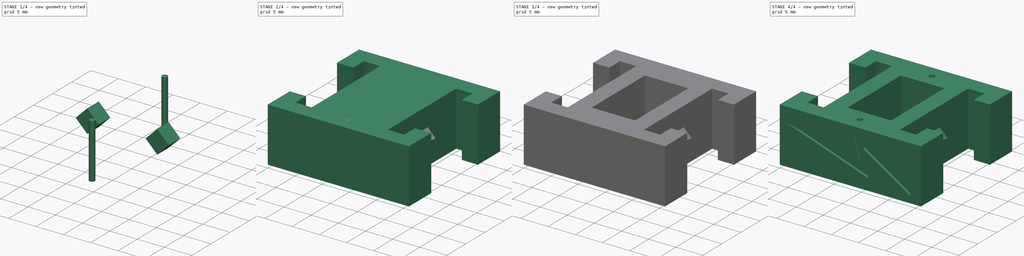
[diagram: build sequence overview — one tinted view per stage of 4, left to right]
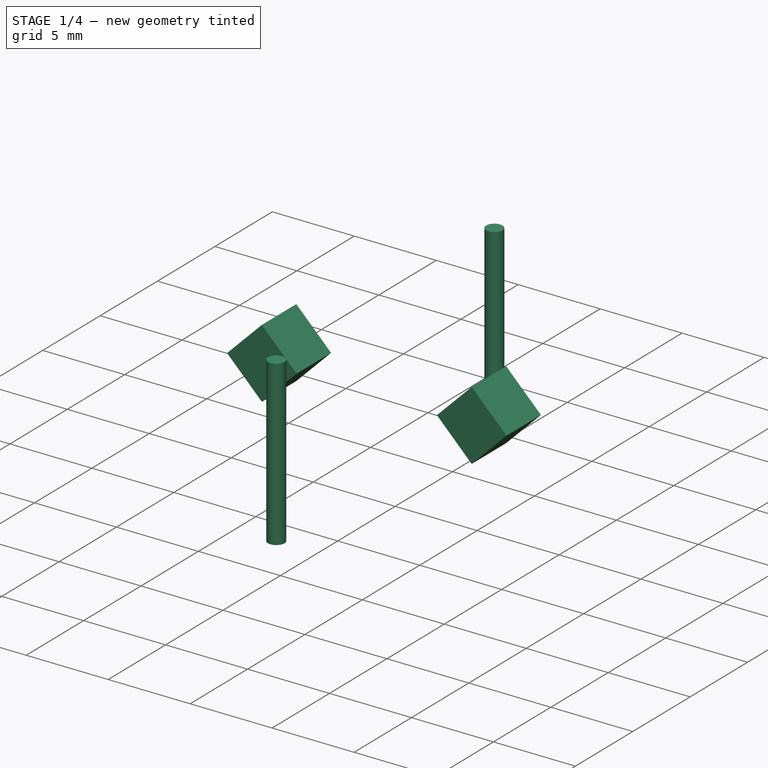
[diagram: stage 1 of 4 — iso view after this stage's code; geometry added in this stage tinted green]
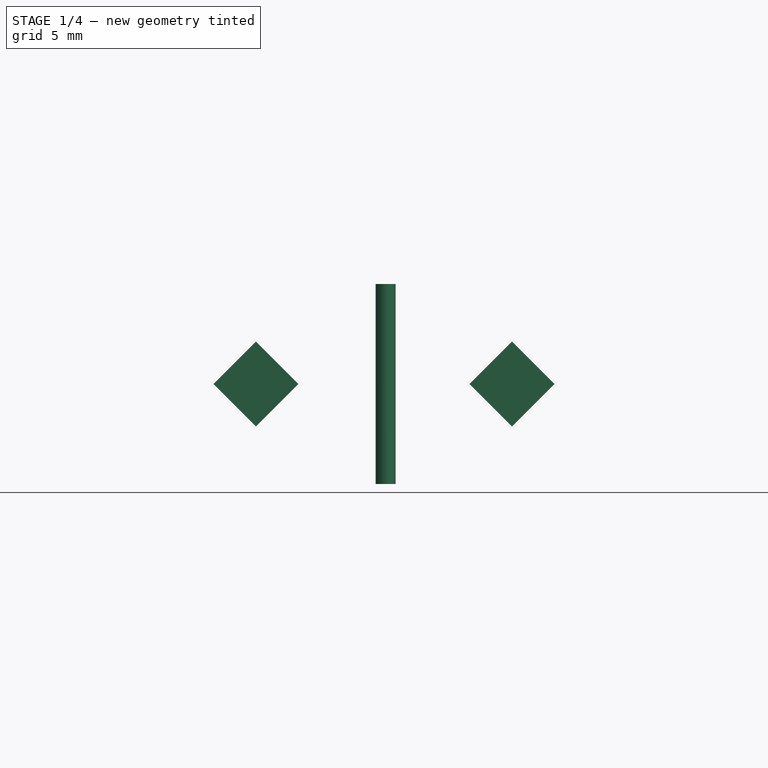
[diagram: stage 1 of 4 — front view after this stage's code; geometry added in this stage tinted green]
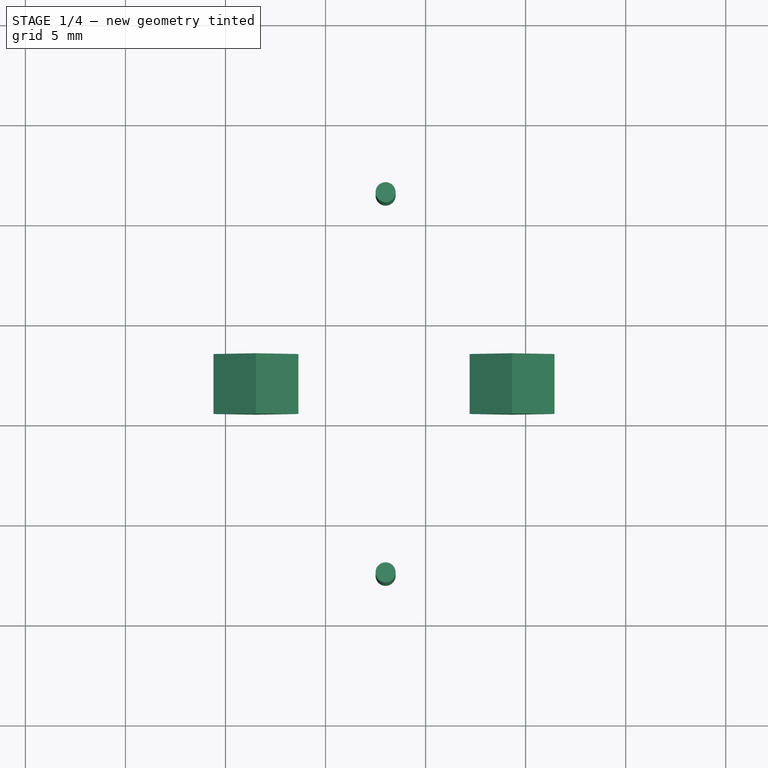
[diagram: stage 1 of 4 — top view after this stage's code; geometry added in this stage tinted green]
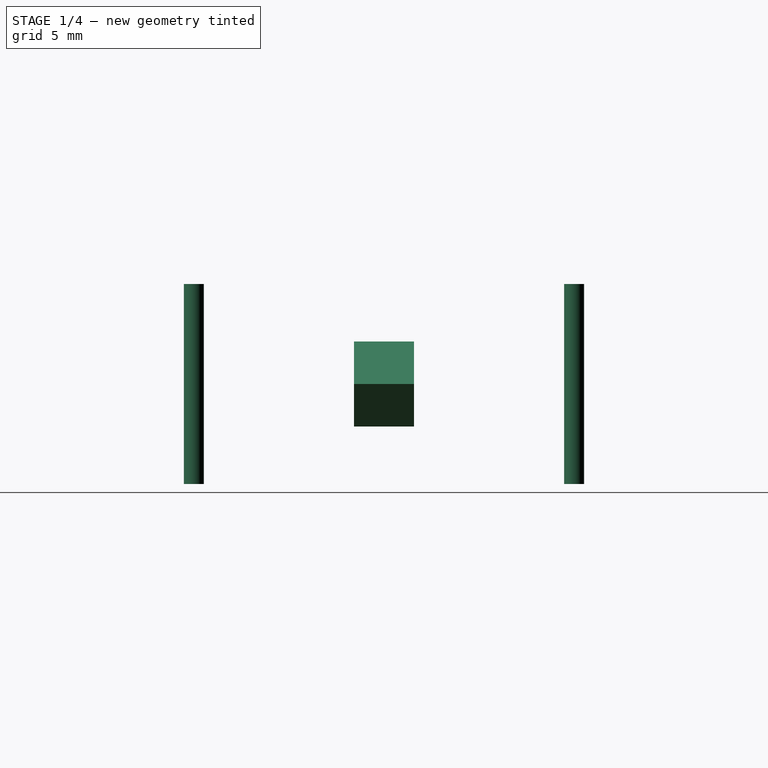
[diagram: stage 1 of 4 — right view after this stage's code; geometry added in this stage tinted green]
FCSTD DOCUMENT  (FreeCAD 0.15R4204 (Git))
Label: nerf_coupler
License: CC-BY 3.0
LicenseURL: http://creativecommons.org/licenses/by/3.0/
objects: Sketcher::SketchObject×3, PartDesign::Pad×3, Part::MultiFuse×3, Part::Box×3, Part::Cut×3, Part::Cylinder×2
note: 20 computed .brp shape members not serialized (recipe doc carries the construction recipe); baked Part::Feature solids carry a one-line shape summary decoded from their .brp

FEATURE [Part::Cylinder] Cylinder
  Angle = 360
  Height = 10
  Placement = pos=(13,2.5,0) rot=(0,0,1;0rad)
  Radius = 0.5
FEATURE [Part::Cylinder] Cylinder001
  Angle = 360
  Height = 10
  Placement = pos=(13,21.5,0) rot=(0,0,1;0rad)
  Radius = 0.5
FEATURE [Part::Box] Box001  label="Cube001"
  Height = 3
  Length = 3
  Placement = pos=(4.4,10.5,5) rot=(0,1,0;0.785398rad)
  Width = 3
FEATURE [Part::Box] Box002  label="Cube002"
  Height = 3
  Length = 3
  Placement = pos=(17.2,10.5,5) rot=(0,1,0;0.785398rad)
  Width = 3
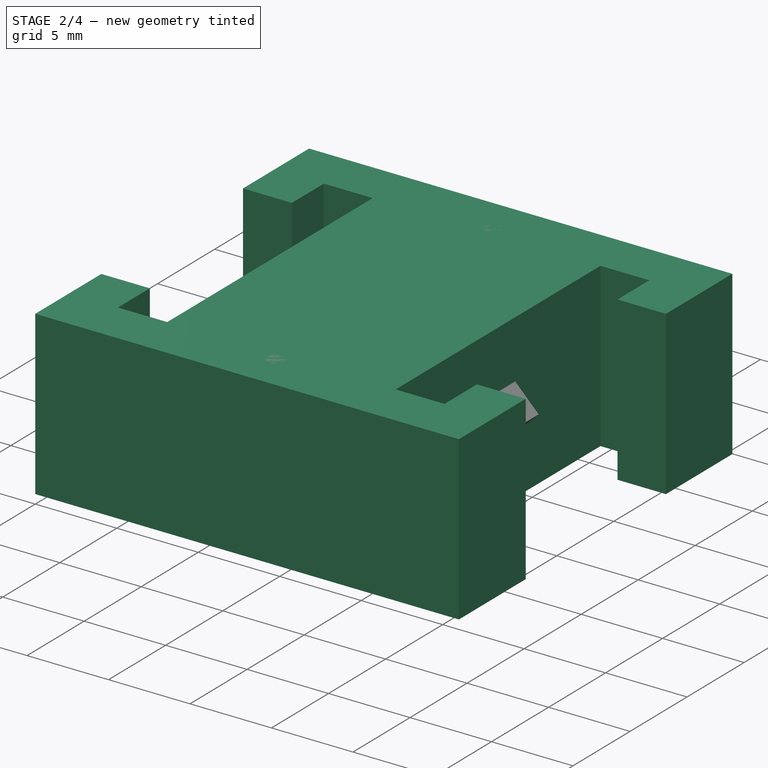
[diagram: stage 2 of 4 — iso view after this stage's code; geometry added in this stage tinted green]
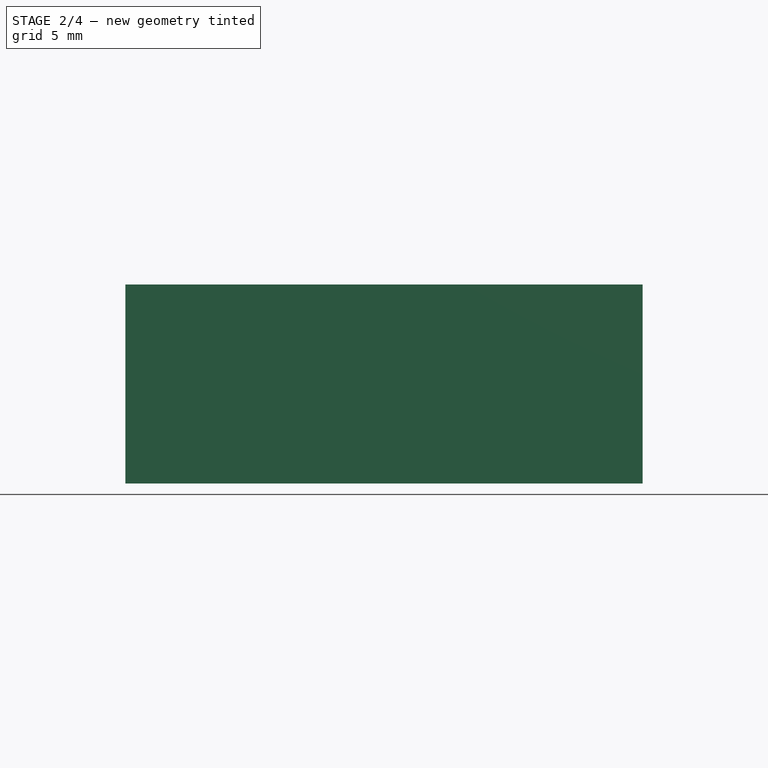
[diagram: stage 2 of 4 — front view after this stage's code; geometry added in this stage tinted green]
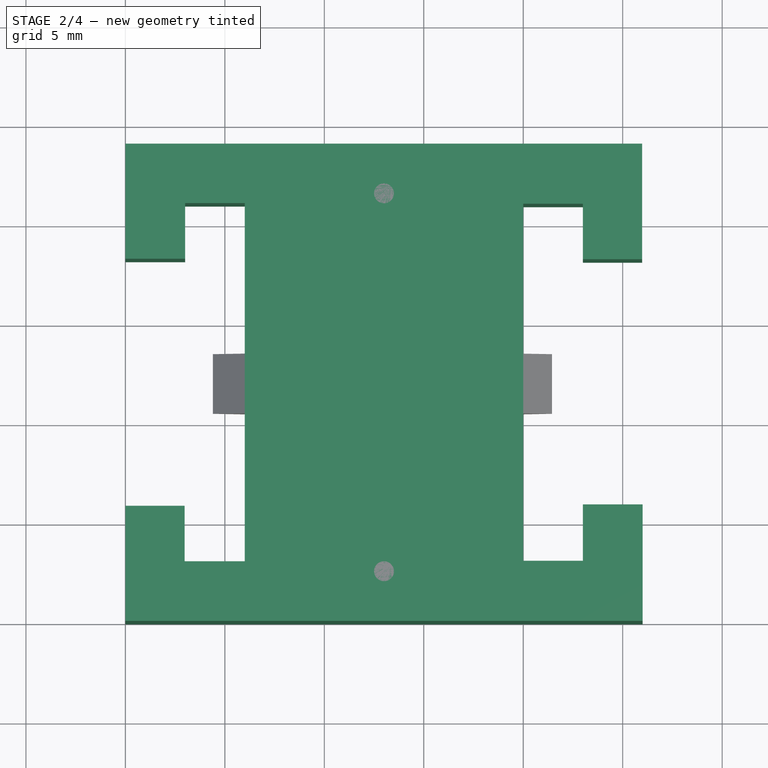
[diagram: stage 2 of 4 — top view after this stage's code; geometry added in this stage tinted green]
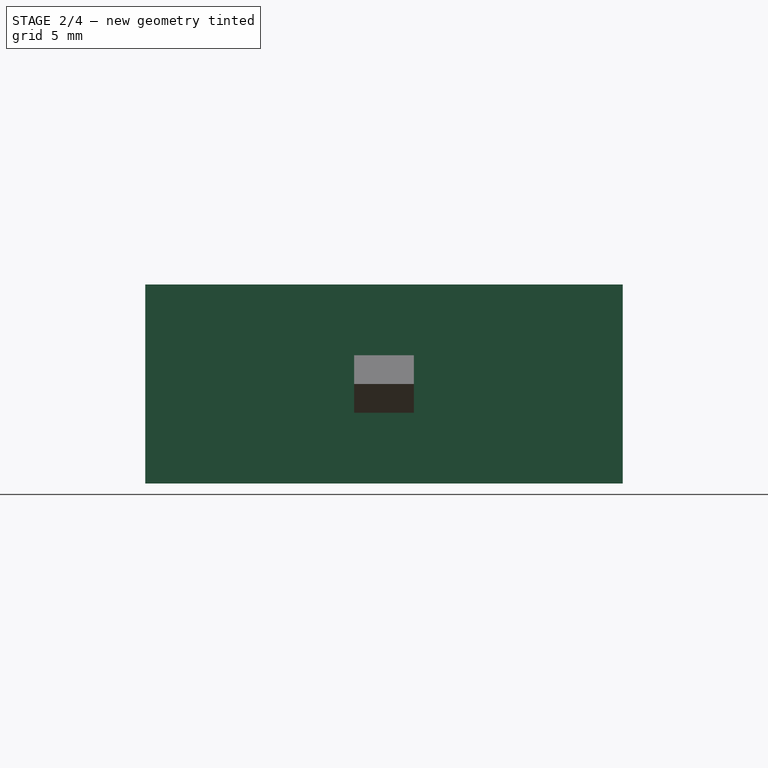
[diagram: stage 2 of 4 — right view after this stage's code; geometry added in this stage tinted green]
FEATURE [Sketcher::SketchObject] Sketch
  sketch-geometry (20):
    g0: LineSegment StartX=0 StartY=0 StartZ=0 EndX=26 EndY=0 EndZ=0
    g1: LineSegment StartX=26 StartY=0 StartZ=0 EndX=26 EndY=5.86268 EndZ=0
    g2: LineSegment StartX=26 StartY=5.86268 StartZ=0 EndX=23.0001 EndY=5.86268 EndZ=0
    g3: LineSegment StartX=23.0001 StartY=5.86268 StartZ=0 EndX=23.0001 EndY=3.0243 EndZ=0
    g4: LineSegment StartX=23.0001 StartY=3.0243 StartZ=0 EndX=20 EndY=3.0243 EndZ=0
    g5: LineSegment StartX=20 StartY=3.0243 StartZ=0 EndX=20 EndY=20.9751 EndZ=0
    g6: LineSegment StartX=20 StartY=20.9751 StartZ=0 EndX=23.0001 EndY=20.9751 EndZ=0
    g7: LineSegment StartX=23.0001 StartY=20.9751 StartZ=0 EndX=23.0001 EndY=18.1829 EndZ=0
    g8: LineSegment StartX=23.0001 StartY=18.1829 StartZ=0 EndX=25.9757 EndY=18.1829 EndZ=0
    g9: LineSegment StartX=25.9757 StartY=18.1829 StartZ=0 EndX=25.9757 EndY=24 EndZ=0
    g10: LineSegment StartX=25.9757 StartY=24 StartZ=0 EndX=0 EndY=24 EndZ=0
    g11: LineSegment StartX=0 StartY=24 StartZ=0 EndX=0 EndY=18.2072 EndZ=0
    g12: LineSegment StartX=0 StartY=18.2072 StartZ=0 EndX=3.00105 EndY=18.2072 EndZ=0
    g13: LineSegment StartX=3.00105 StartY=18.2072 StartZ=0 EndX=3.00105 EndY=21.0038 EndZ=0
    g14: LineSegment StartX=3.00105 StartY=21.0038 StartZ=0 EndX=6 EndY=21.0038 EndZ=0
    g15: LineSegment StartX=6 StartY=21.0038 StartZ=0 EndX=6 EndY=3 EndZ=0
    g16: LineSegment StartX=6 StartY=3 StartZ=0 EndX=2.97675 EndY=3 EndZ=0
    g17: LineSegment StartX=2.97675 StartY=3 StartZ=0 EndX=2.97675 EndY=5.78978 EndZ=0
    g18: LineSegment StartX=2.97675 StartY=5.78978 StartZ=0 EndX=0 EndY=5.78978 EndZ=0
    g19: LineSegment StartX=0 StartY=5.78978 StartZ=0 EndX=0 EndY=0 EndZ=0
  constraints (40):
    c: Coincident(g-1,g0)
    c: PointOnObject(g0,g-1)
    c: Coincident(g0,g1)
    c: Vertical(g1)
    c: Coincident(g1,g2)
    c: Horizontal(g2)
    c: Coincident(g2,g3)
    c: Vertical(g3)
    c: Coincident(g3,g4)
    c: Horizontal(g4)
    c: Coincident(g4,g5)
    c: Vertical(g5)
    c: Coincident(g5,g6)
    c: Horizontal(g6)
    c: Coincident(g6,g7)
    c: Vertical(g7)
    c: Coincident(g7,g8)
    c: Horizontal(g8)
    c: Coincident(g8,g9)
    c: Vertical(g9)
    c: Coincident(g9,g10)
    c: Horizontal(g10)
    c: Coincident(g10,g11)
    c: Vertical(g11)
    c: Coincident(g11,g12)
    c: Horizontal(g12)
    c: Coincident(g12,g13)
    c: Vertical(g13)
    c: Coincident(g13,g14)
    c: Horizontal(g14)
    c: Coincident(g14,g15)
    c: Vertical(g15)
    c: Coincident(g15,g16)
    c: Horizontal(g16)
    c: Coincident(g16,g17)
    c: Vertical(g17)
    c: Coincident(g17,g18)
    c: Horizontal(g18)
    c: Coincident(g18,g19)
    c: Vertical(g19)
FEATURE [PartDesign::Pad] Pad
  Length = 10
  Length2 = 100
  Sketch = -> Sketch
  Type = 0
FEATURE [Part::Box] Box  label="Cube"
  Height = 10
  Length = 8
  Placement = pos=(9,5,0) rot=(0,0,1;0rad)
  Width = 14
FEATURE [Part::MultiFuse] Fusion
  Shapes = -> [Cylinder001,Cylinder]
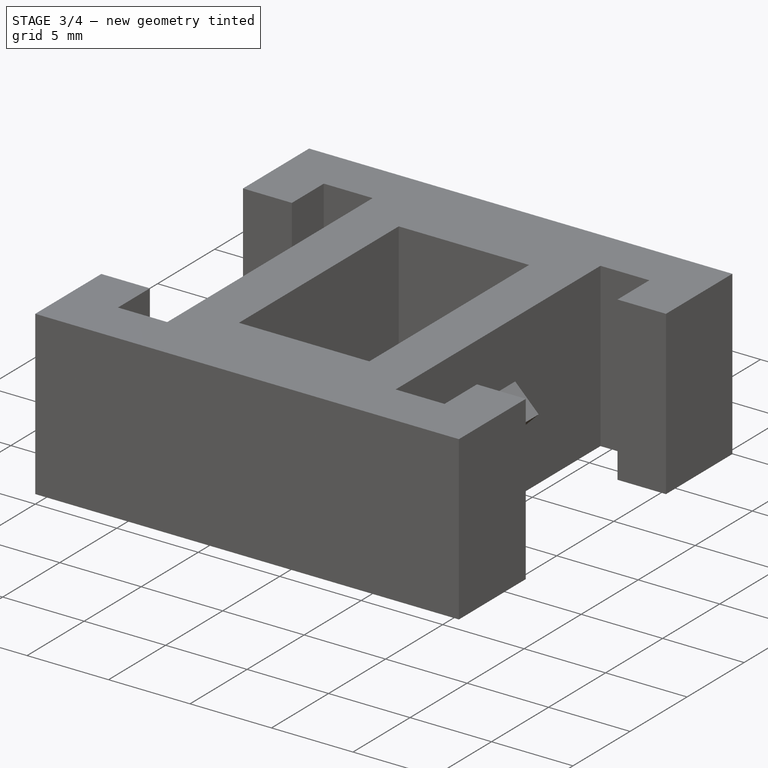
[diagram: stage 3 of 4 — iso view after this stage's code; geometry added in this stage tinted green]
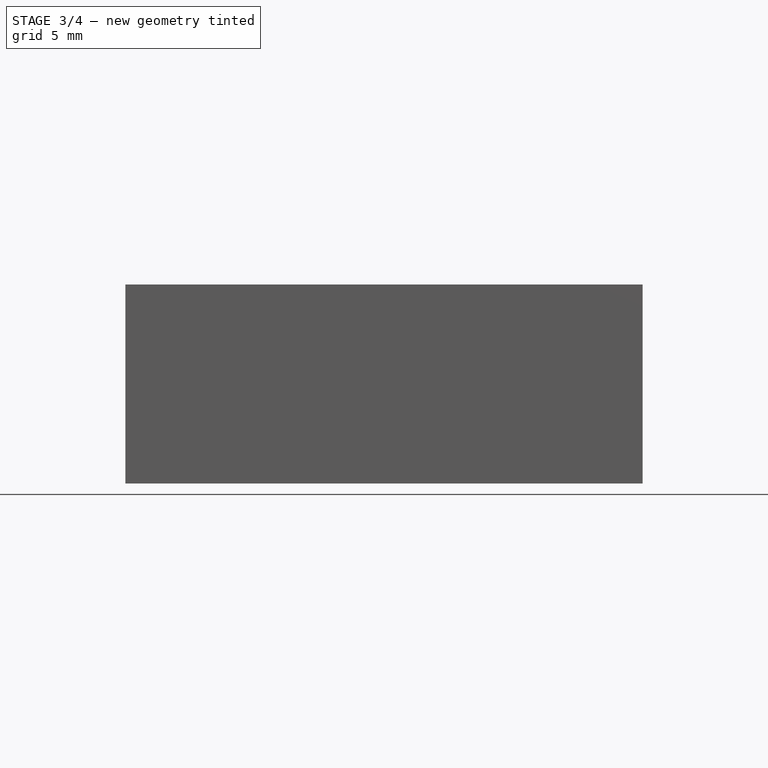
[diagram: stage 3 of 4 — front view after this stage's code; geometry added in this stage tinted green]
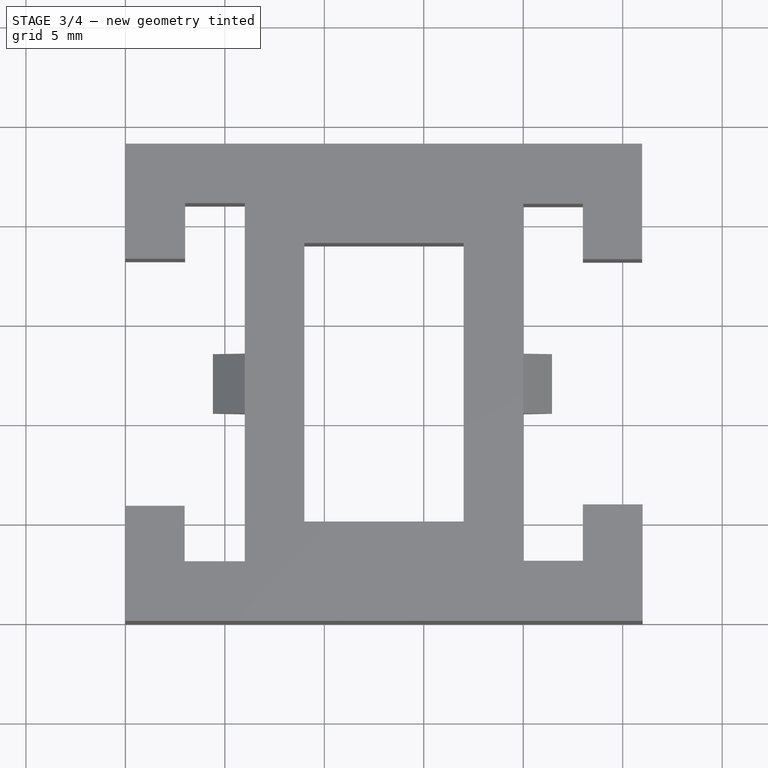
[diagram: stage 3 of 4 — top view after this stage's code; geometry added in this stage tinted green]
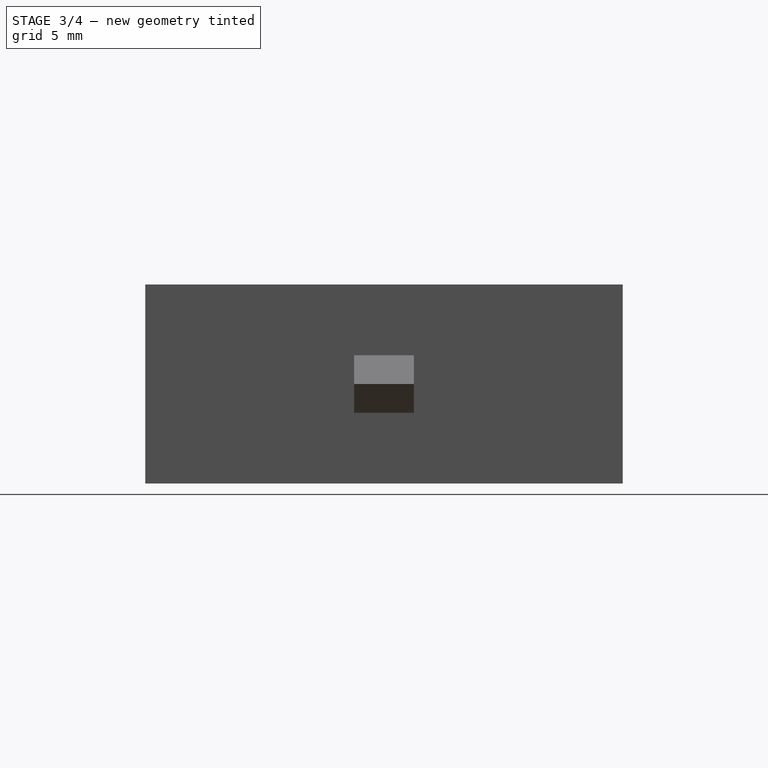
[diagram: stage 3 of 4 — right view after this stage's code; geometry added in this stage tinted green]
FEATURE [Sketcher::SketchObject] Sketch001
  Placement = pos=(0,24,0) rot=(0,0.707107,0.707107;3.14159rad)
  sketch-geometry (7):
    g0: LineSegment StartX=-24.0443 StartY=6.19251 StartZ=0 EndX=-24.0443 EndY=1.18399 EndZ=0
    g1: LineSegment StartX=-24.0443 StartY=1.18399 StartZ=0 EndX=-15.3151 EndY=6.76491 EndZ=0
    g2: LineSegment StartX=-15.3151 StartY=6.76491 StartZ=0 EndX=-16.2692 EndY=2.09029 EndZ=0
    g3: LineSegment StartX=-16.2692 StartY=2.09029 StartZ=0 EndX=-1.10049 EndY=7.33731 EndZ=0
    g4: LineSegment StartX=-1.10049 StartY=7.33731 StartZ=0 EndX=-14.4565 EndY=4.5707 EndZ=0
    g5: LineSegment StartX=-14.4565 StartY=4.5707 StartZ=0 EndX=-13.5502 EndY=8.72062 EndZ=0
    g6: LineSegment StartX=-13.5502 StartY=8.72062 StartZ=0 EndX=-24.0443 EndY=6.19251 EndZ=0
  constraints (8):
    c: Vertical(g0)
    c: Coincident(g0,g1)
    c: Coincident(g1,g2)
    c: Coincident(g2,g3)
    c: Coincident(g3,g4)
    c: Coincident(g4,g5)
    c: Coincident(g5,g6)
    c: Coincident(g6,g0)
FEATURE [Sketcher::SketchObject] Sketch002
  Placement = pos=(0,0,0) rot=(0,0.707107,0.707107;3.14159rad)
  sketch-geometry (7):
    g0: LineSegment StartX=-24.0443 StartY=6.19251 StartZ=0 EndX=-24.0443 EndY=1.18399 EndZ=0
    g1: LineSegment StartX=-24.0443 StartY=1.18399 StartZ=0 EndX=-15.3151 EndY=6.76491 EndZ=0
    g2: LineSegment StartX=-15.3151 StartY=6.76491 StartZ=0 EndX=-16.2692 EndY=2.09029 EndZ=0
    g3: LineSegment StartX=-16.2692 StartY=2.09029 StartZ=0 EndX=-1.10049 EndY=7.33731 EndZ=0
    g4: LineSegment StartX=-1.10049 StartY=7.33731 StartZ=0 EndX=-14.4565 EndY=4.5707 EndZ=0
    g5: LineSegment StartX=-14.4565 StartY=4.5707 StartZ=0 EndX=-13.5502 EndY=8.72062 EndZ=0
    g6: LineSegment StartX=-13.5502 StartY=8.72062 StartZ=0 EndX=-24.0443 EndY=6.19251 EndZ=0
  constraints (8):
    c: Vertical(g0)
    c: Coincident(g0,g1)
    c: Coincident(g1,g2)
    c: Coincident(g2,g3)
    c: Coincident(g3,g4)
    c: Coincident(g4,g5)
    c: Coincident(g5,g6)
    c: Coincident(g6,g0)
FEATURE [PartDesign::Pad] Pad001
  Length = 0.5
  Length2 = 100
  Placement = pos=(0,0,0) rot=(0,0.707107,0.707107;3.14159rad)
  Sketch = -> Sketch002
  Type = 0
FEATURE [PartDesign::Pad] Pad002
  Length = 0.5
  Length2 = 100
  Placement = pos=(0,24,0) rot=(0,0.707107,0.707107;3.14159rad)
  Reversed = true
  Sketch = -> Sketch001
  Type = 0
FEATURE [Part::Cut] Cut
  Base = -> Pad
  Tool = -> Box
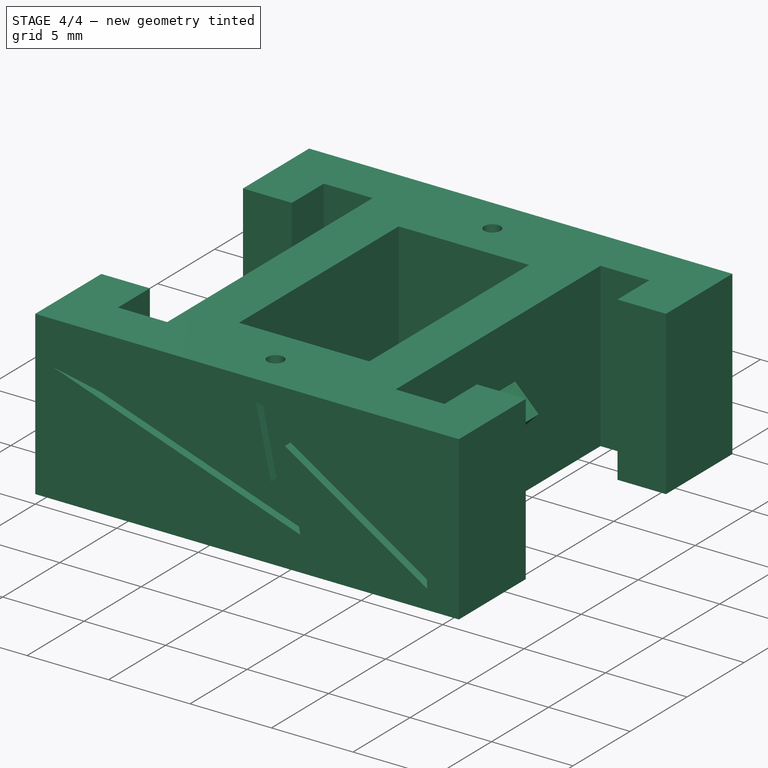
[diagram: stage 4 of 4 — iso view after this stage's code; geometry added in this stage tinted green]
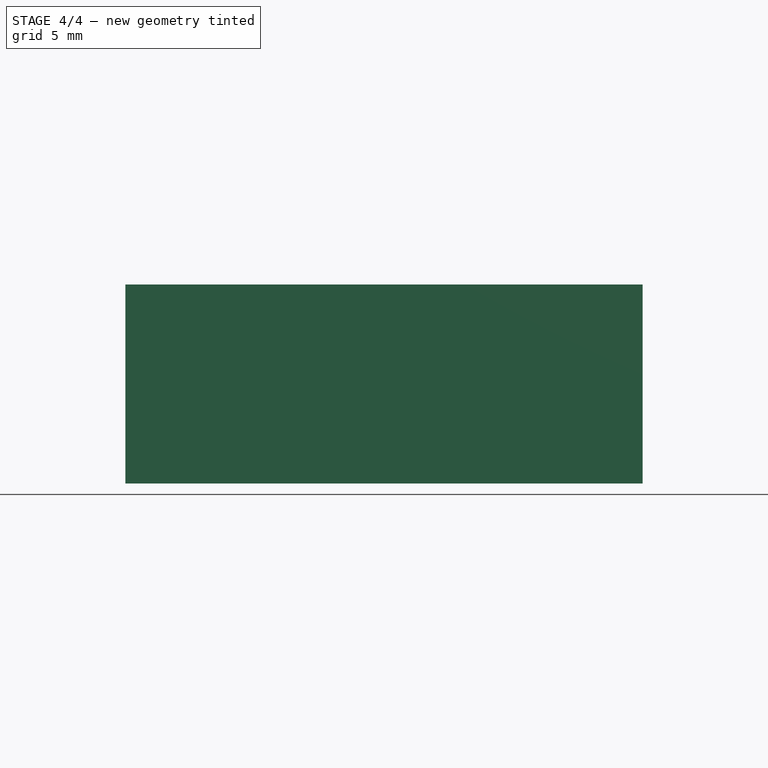
[diagram: stage 4 of 4 — front view after this stage's code; geometry added in this stage tinted green]
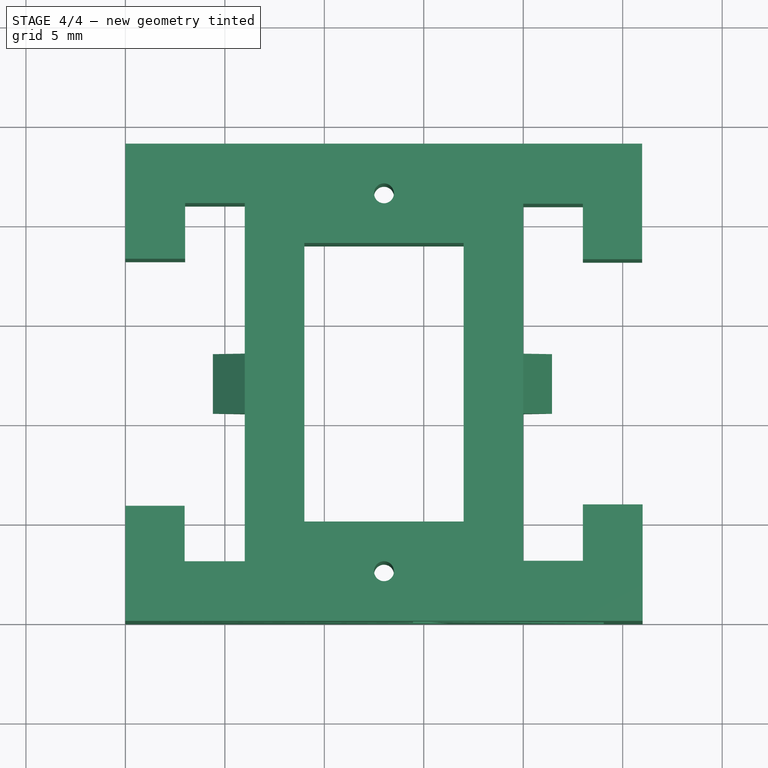
[diagram: stage 4 of 4 — top view after this stage's code; geometry added in this stage tinted green]
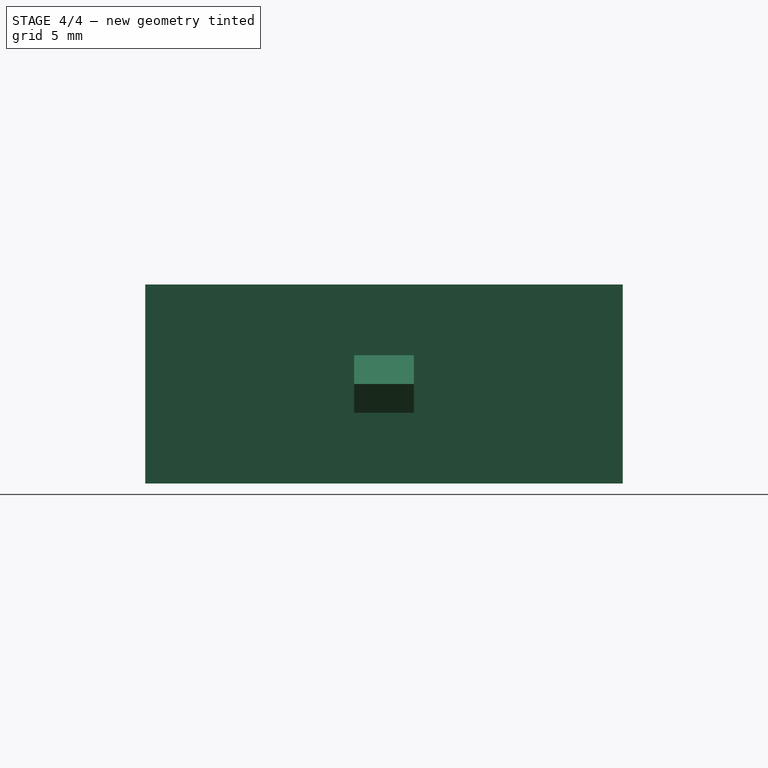
[diagram: stage 4 of 4 — right view after this stage's code; geometry added in this stage tinted green]
FEATURE [Part::MultiFuse] Fusion004
  Shapes = -> [Pad001,Pad002]
FEATURE [Part::Cut] Cut001
  Base = -> Cut
  Tool = -> Fusion004
FEATURE [Part::Cut] Cut002
  Base = -> Cut001
  Tool = -> Fusion
FEATURE [Part::MultiFuse] Fusion005
  Shapes = -> [Cut002,Box001,Box002]
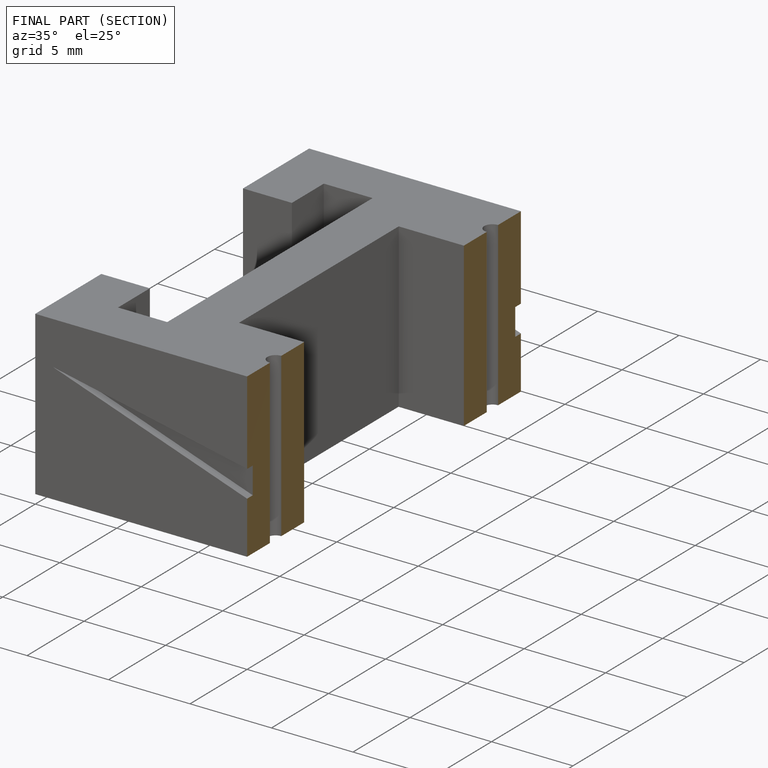
[diagram: finished part — half-section view (interior)]
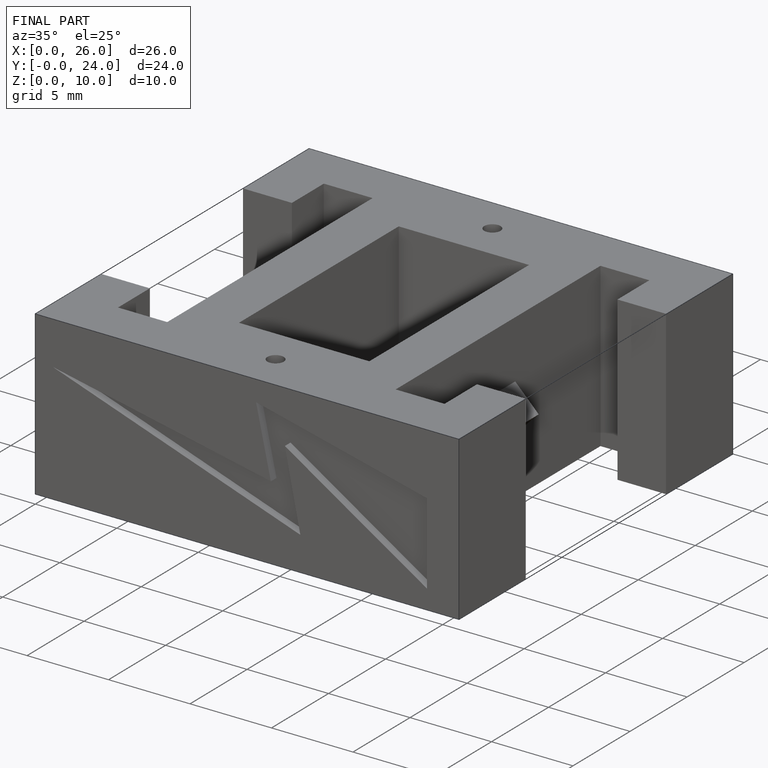
[diagram: finished part — iso view with bounding-box wireframe]
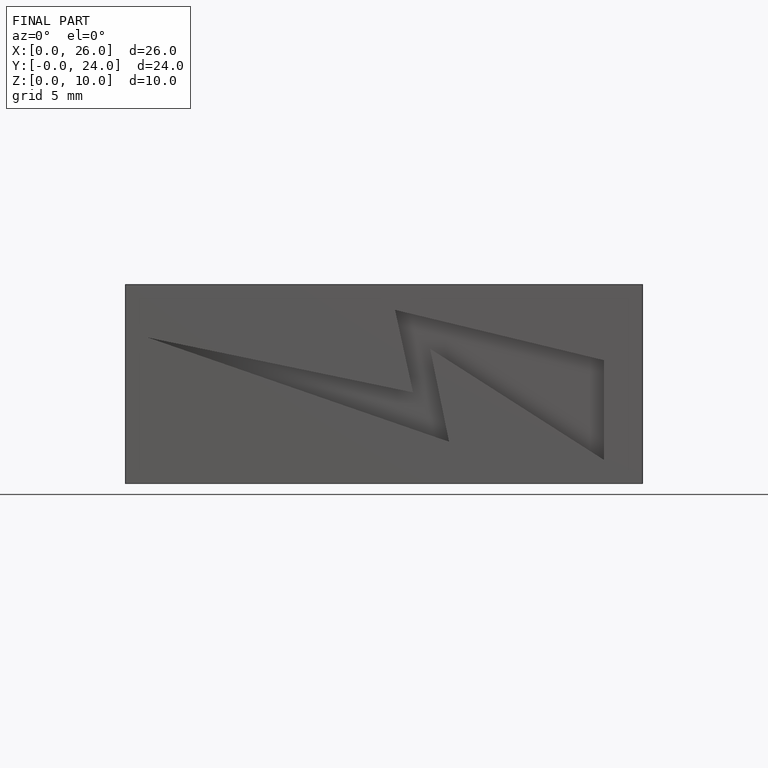
[diagram: finished part — front view with bounding-box wireframe]
